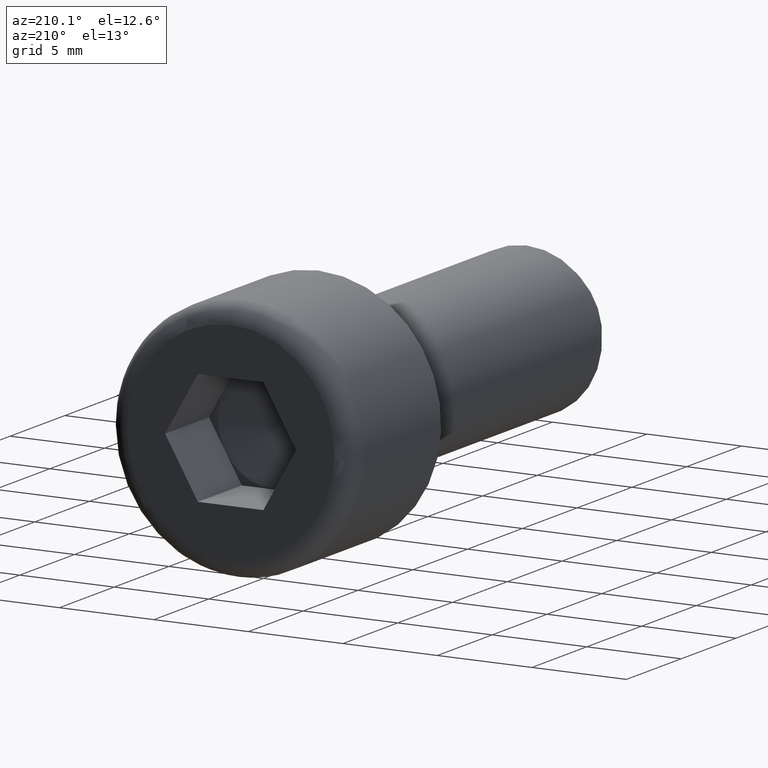
[diagram: clean part render]
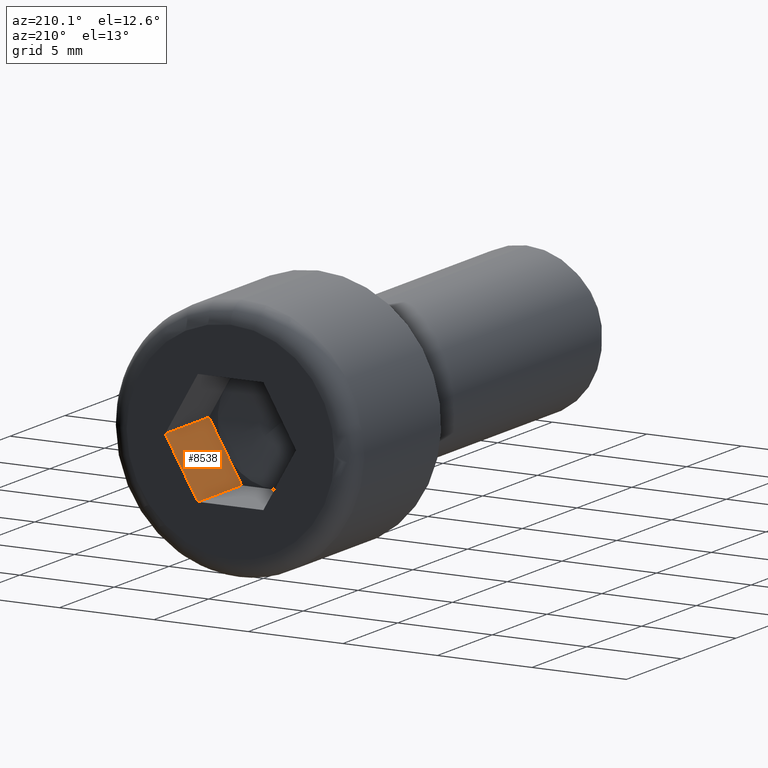
[diagram: same view with one face highlighted and labeled with its STEP entity id]
A machine part, auxiliary view. The second image highlights one B-rep face of the part: STEP entity #8538.
In plain terms, the highlighted planar face has unit normal (0.866, 0, -0.5).
Its self-contained STEP definition (entity closure, byte-faithful):
#677 = VECTOR ( 'NONE', #1967, 1000.000000000000200 ) ;
#719 = ORIENTED_EDGE ( 'NONE', *, *, #8778, .T. ) ;
#817 = AXIS2_PLACEMENT_3D ( 'NONE', #14205, #11771, #15438 ) ;
#822 = DIRECTION ( 'NONE',  ( -0.0000000000000000000, 1.000000000000000000, -0.0000000000000000000 ) ) ;
#1181 = CARTESIAN_POINT ( 'NONE',  ( 2.598076211353315600, 3.999999999999999100, -1.500000000000000900 ) ) ;
#1236 = CARTESIAN_POINT ( 'NONE',  ( 3.464101615137755300, 8.000000000000000000, 8.032070669435346800E-016 ) ) ;
#1701 = ORIENTED_EDGE ( 'NONE', *, *, #6472, .F. ) ;
#1790 = VERTEX_POINT ( 'NONE', #2339 ) ;
#1967 = DIRECTION ( 'NONE',  ( -0.5000000000000002200, 0.0000000000000000000, -0.8660254037844384900 ) ) ;
#2189 = ORIENTED_EDGE ( 'NONE', *, *, #9859, .T. ) ;
#2339 = CARTESIAN_POINT ( 'NONE',  ( 3.464101615137755300, 8.000000000000000000, 8.032070669435346800E-016 ) ) ;
#2458 = VERTEX_POINT ( 'NONE', #3850 ) ;
#3428 = CARTESIAN_POINT ( 'NONE',  ( 1.732050807568876300, 4.000000000000000000, -3.000000000000000000 ) ) ;
#3849 = LINE ( 'NONE', #3428, #10034 ) ;
#3850 = CARTESIAN_POINT ( 'NONE',  ( 3.464101615137755300, 4.000000000000000000, 8.032070669435346800E-016 ) ) ;
#4128 = FACE_OUTER_BOUND ( 'NONE', #5095, .T. ) ;
#4504 = PLANE ( 'NONE',  #817 ) ;
#4545 = EDGE_CURVE ( 'NONE', #2458, #11428, #6520, .T. ) ;
#5095 = EDGE_LOOP ( 'NONE', ( #719, #5483, #1701, #6216, #2189 ) ) ;
#5398 = CARTESIAN_POINT ( 'NONE',  ( 1.732050807568876300, 8.000000000000000000, -3.000000000000000000 ) ) ;
#5483 = ORIENTED_EDGE ( 'NONE', *, *, #14330, .F. ) ;
#5668 = LINE ( 'NONE', #14840, #15340 ) ;
#6216 = ORIENTED_EDGE ( 'NONE', *, *, #4545, .F. ) ;
#6472 = EDGE_CURVE ( 'NONE', #11428, #13026, #7839, .T. ) ;
#6520 = LINE ( 'NONE', #15989, #677 ) ;
#7173 = CARTESIAN_POINT ( 'NONE',  ( 1.732050807568876300, 4.000000000000000000, -3.000000000000000000 ) ) ;
#7839 = LINE ( 'NONE', #14544, #15744 ) ;
#8538 = ADVANCED_FACE ( 'NONE', ( #4128 ), #4504, .F. ) ;
#8778 = EDGE_CURVE ( 'NONE', #1790, #9558, #12461, .T. ) ;
#9558 = VERTEX_POINT ( 'NONE', #5398 ) ;
#9859 = EDGE_CURVE ( 'NONE', #2458, #1790, #5668, .T. ) ;
#9904 = DIRECTION ( 'NONE',  ( -0.5000000000000002200, 0.0000000000000000000, -0.8660254037844384900 ) ) ;
#10034 = VECTOR ( 'NONE', #822, 1000.000000000000000 ) ;
#11162 = DIRECTION ( 'NONE',  ( -0.0000000000000000000, 1.000000000000000000, -0.0000000000000000000 ) ) ;
#11428 = VERTEX_POINT ( 'NONE', #1181 ) ;
#11771 = DIRECTION ( 'NONE',  ( 0.8660254037844386000, 0.0000000000000000000, -0.5000000000000003300 ) ) ;
#12003 = DIRECTION ( 'NONE',  ( -0.5000000000000002200, 0.0000000000000000000, -0.8660254037844384900 ) ) ;
#12461 = LINE ( 'NONE', #1236, #14566 ) ;
#13026 = VERTEX_POINT ( 'NONE', #7173 ) ;
#14205 = CARTESIAN_POINT ( 'NONE',  ( 3.464101615137755300, 4.000000000000000000, 8.032070669435346800E-016 ) ) ;
#14330 = EDGE_CURVE ( 'NONE', #13026, #9558, #3849, .T. ) ;
#14544 = CARTESIAN_POINT ( 'NONE',  ( 3.464101615137755300, 4.000000000000000000, 8.032070669435346800E-016 ) ) ;
#14566 = VECTOR ( 'NONE', #9904, 1000.000000000000200 ) ;
#14840 = CARTESIAN_POINT ( 'NONE',  ( 3.464101615137755300, 4.000000000000000000, 8.032070669435346800E-016 ) ) ;
#15340 = VECTOR ( 'NONE', #11162, 1000.000000000000000 ) ;
#15438 = DIRECTION ( 'NONE',  ( -0.5000000000000002200, 0.0000000000000000000, -0.8660254037844384900 ) ) ;
#15744 = VECTOR ( 'NONE', #12003, 1000.000000000000200 ) ;
#15989 = CARTESIAN_POINT ( 'NONE',  ( 3.464101615137755300, 4.000000000000000000, 8.032070669435346800E-016 ) ) ;